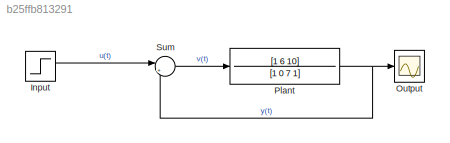
MODEL slx_b25ffb813291
KIND model
CONFIG AbsTol = auto
CONFIG EnableMultiTasking = off
CONFIG FixedStep = auto
CONFIG MaxStep = auto
CONFIG MinStep = auto
CONFIG RelTol = 1e-3
CONFIG SampleTimeConstraint = Unconstrained
CONFIG SolverName = VariableStepAuto
CONFIG StartTime = 0.0
CONFIG StopTime = 20
BLOCK [Step] Input
  SampleTime = 0
BLOCK [Scope] Output
  Floating = off
  NumInputPorts = 1
  Ports = [1]
  ScopeSpecificationString = Simulink.scopes.TimeScopeBlockCfg('CurrentConfiguration', extmgr.ConfigurationSet(extmgr.Configuration('Core','General UI',true),extmgr.Configuration('Core','Source UI',true),extmgr.Configuration('Sources','WiredSimulink',true),extmgr.Configuration('Visuals','Time Domain',true,'SerializedDisplays',{struct('MinYLimReal','-1.17696','MaxYLimReal','10.5926','YLabelReal','','MinYLimMag','0.00000','MaxY...<+1427ch>
BLOCK [TransferFcn] Plant
  Denominator = [1 0 7 1]
  Numerator = [1 6 10]
BLOCK [Sum] Sum
  Inputs = |+-
  Ports = [2, 1]
LINE Input:1 -> Sum:1
NET Plant:1 -> Output:1, Sum:2
LINE Sum:1 -> Plant:1
note: NET lines group one-source signal fan-out (src -> all destinations, sorted); 1:1 wires keep LINE
